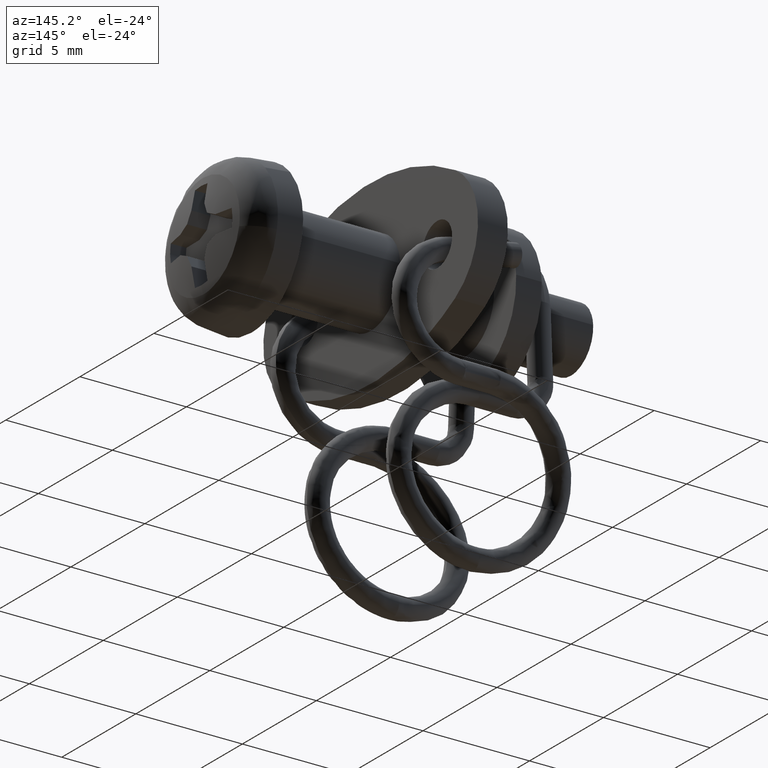
[diagram: clean part render]
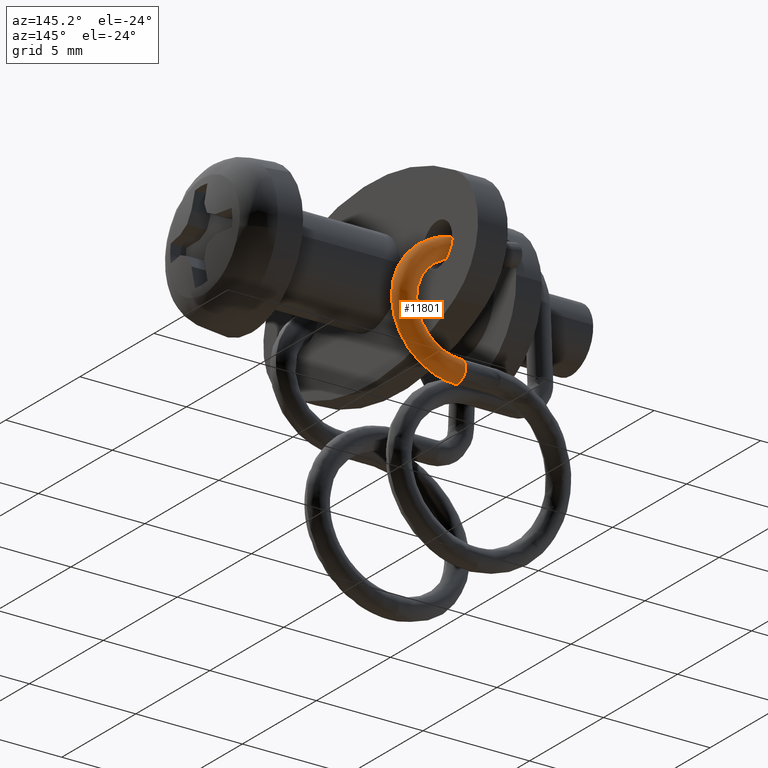
[diagram: same view with one face highlighted and labeled with its STEP entity id]
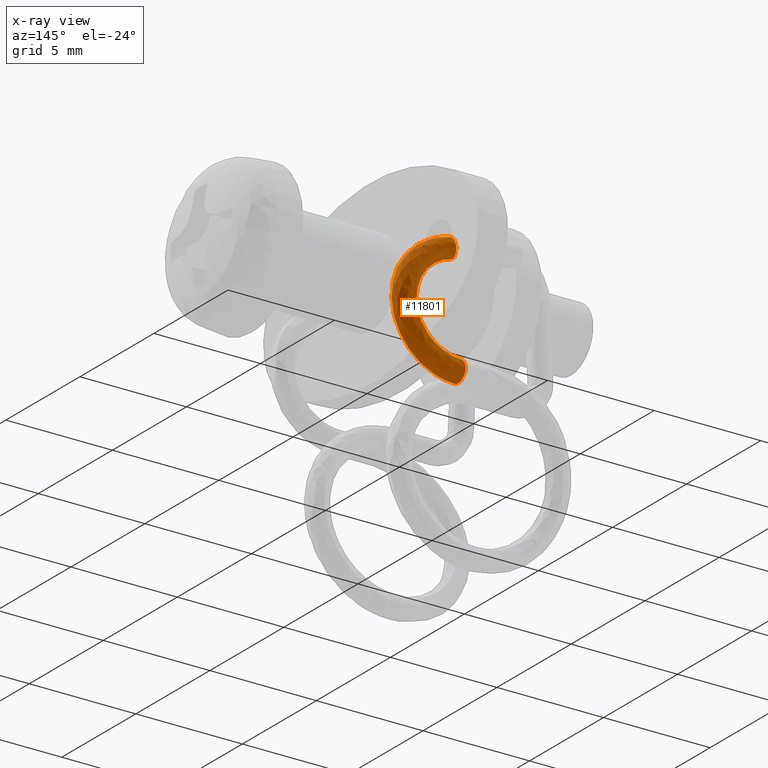
[diagram: x-ray of the same camera — body ghosted, the highlighted face saturated]
A machine part, auxiliary view. The second image highlights one B-rep face of the part: STEP entity #11801.
The next image is the same camera in x-ray: the body ghosted, the highlighted face saturated — about 0% of this face is hidden behind the body in this view.
In plain terms, the highlighted face is a freeform B-spline surface patch.
Its self-contained STEP definition (entity closure, byte-faithful):
#11352=CARTESIAN_POINT('',(-6.857397090985770,4.574609582255347,-5.057244701421936));
#11353=VERTEX_POINT('',#11352);
#11359=CARTESIAN_POINT('',(-6.857397090985770,3.914105829636933,-5.364137132687596));
#11360=VERTEX_POINT('',#11359);
#11361=CARTESIAN_POINT('',(-6.857397090985770,4.574609582255347,-5.057244701421936));
#11362=CARTESIAN_POINT('',(-6.857397090985770,4.571503730684165,-5.066909978119954));
#11363=CARTESIAN_POINT('',(-6.857397090985770,4.568055177712430,-5.076490356728621));
#11364=CARTESIAN_POINT('',(-6.857397090985770,4.466876874080229,-5.328985217815130));
#11365=CARTESIAN_POINT('',(-6.857397090985770,4.157144137744330,-5.461504723748870));
#11366=CARTESIAN_POINT('',(-6.857397090985770,3.914105829636933,-5.364137132687596));
#11367=B_SPLINE_CURVE_WITH_KNOTS('',3,(#11361,#11362,#11363,#11364,#11365,#11366),.UNSPECIFIED.,.F.,.U.,(4,2,4),(0.240248661621127,0.250000000000000,0.500000000000000),.UNSPECIFIED.);
#11368=EDGE_CURVE('',#11353,#11360,#11367,.T.);
#11432=CARTESIAN_POINT('',(-6.857397090985770,4.286002170360614,-4.435862867313218));
#11433=VERTEX_POINT('',#11432);
#11443=CARTESIAN_POINT('',(-6.857397090985770,4.286002170360614,-4.435862867313218));
#11444=CARTESIAN_POINT('',(-6.857397090985769,4.519562766854167,-4.529433270430019));
#11445=CARTESIAN_POINT('',(-6.857397090985770,4.651096080717922,-4.819105481344381));
#11446=CARTESIAN_POINT('',(-6.857397090985770,4.574609582255347,-5.057244701421936));
#11447=B_SPLINE_CURVE_WITH_KNOTS('',3,(#11443,#11444,#11445,#11446),.UNSPECIFIED.,.F.,.U.,(4,4),(0.0,0.240248661621127),.UNSPECIFIED.);
#11448=EDGE_CURVE('',#11433,#11353,#11447,.T.);
#11585=CARTESIAN_POINT('',(-6.335783071425165,3.905104269463138,0.597938229061926));
#11586=VERTEX_POINT('',#11585);
#11587=CARTESIAN_POINT('',(-6.335783071425166,3.905104269463137,0.597938229061926));
#11588=CARTESIAN_POINT('',(-5.602900445289095,3.905299498747010,0.468630671507205));
#11589=CARTESIAN_POINT('',(-4.926433057385125,3.905920072442788,0.057600915884783));
#11590=CARTESIAN_POINT('',(-4.022148053966729,3.907699330487063,-1.120869298891779));
#11591=CARTESIAN_POINT('',(-3.800239045692645,3.908848768637470,-1.882185864490553));
#11592=CARTESIAN_POINT('',(-3.929704549422163,3.911082972418768,-3.361983928466120));
#11593=CARTESIAN_POINT('',(-4.280443463391535,3.912156769253874,-4.073200376686527));
#11594=CARTESIAN_POINT('',(-5.375629594678035,3.913671916102187,-5.076739709921950));
#11595=CARTESIAN_POINT('',(-6.113194553542385,3.914105709530023,-5.364057738455996));
#11596=CARTESIAN_POINT('',(-6.857397090985770,3.914105829636933,-5.364137132687596));
#11597=B_SPLINE_CURVE_WITH_KNOTS('',3,(#11587,#11588,#11589,#11590,#11591,#11592,#11593,#11594,#11595,#11596),.UNSPECIFIED.,.F.,.U.,(4,2,2,2,4),(0.034637796732004,0.055389832968479,0.076141869204954,0.096893905441429,0.117645941677904),.UNSPECIFIED.);
#11598=EDGE_CURVE('',#11586,#11360,#11597,.T.);
#11611=CARTESIAN_POINT('',(-6.496878647618766,4.279780651931204,-0.315114794453959));
#11612=VERTEX_POINT('',#11611);
#11624=CARTESIAN_POINT('',(-6.496878647618771,4.279780651931205,-0.315114794453958));
#11625=CARTESIAN_POINT('',(-5.990338257333215,4.279915572711623,-0.404477775277564));
#11626=CARTESIAN_POINT('',(-5.522792933945855,4.280344501876490,-0.688574038970198));
#11627=CARTESIAN_POINT('',(-4.897787335114730,4.281574253819422,-1.503085481167307));
#11628=CARTESIAN_POINT('',(-4.744412594875820,4.282368699837518,-2.029277267968970));
#11629=CARTESIAN_POINT('',(-4.833894010942875,4.283912892787378,-3.052054938033365));
#11630=CARTESIAN_POINT('',(-5.076310839934835,4.284655058369700,-3.543619405597520));
#11631=CARTESIAN_POINT('',(-5.833259488038681,4.285702266991295,-4.237225469363580));
#11632=CARTESIAN_POINT('',(-6.343034469353620,4.286002101363282,-4.435817297972488));
#11633=CARTESIAN_POINT('',(-6.857397090985770,4.286002170360614,-4.435862867313218));
#11634=B_SPLINE_CURVE_WITH_KNOTS('',3,(#11624,#11625,#11626,#11627,#11628,#11629,#11630,#11631,#11632,#11633),.UNSPECIFIED.,.F.,.U.,(4,2,2,2,4),(0.034637796732004,0.055389832968479,0.076141869204954,0.096893905441429,0.117645941677904),.UNSPECIFIED.);
#11635=EDGE_CURVE('',#11612,#11433,#11634,.T.);
#11642=CARTESIAN_POINT('',(-6.558490144314505,4.265039276412708,-0.310107515975626));
#11643=CARTESIAN_POINT('',(-6.558213864164536,4.269966495808609,-0.308191328469280));
#11644=CARTESIAN_POINT('',(-6.551359725723171,4.396707570699889,-0.260800229876941));
#11645=CARTESIAN_POINT('',(-6.522126161230816,4.598787426501039,-0.059095245938268));
#11646=CARTESIAN_POINT('',(-6.481224338216968,4.607458467204674,0.220190010399010));
#11647=CARTESIAN_POINT('',(-6.445993904050252,4.508712774972074,0.461419092416553));
#11648=CARTESIAN_POINT('',(-6.417285049391600,4.306568654690630,0.655996147436825));
#11649=CARTESIAN_POINT('',(-6.416662325147400,4.019883976543893,0.662115064560463));
#11650=CARTESIAN_POINT('',(-6.424371727680103,3.895515578624770,0.609098480296686));
#11651=CARTESIAN_POINT('',(-6.424666685965013,3.890632925066235,0.607091584902330));
#11652=CARTESIAN_POINT('',(-6.538317975844289,4.265106627504083,-0.313835434149020));
#11653=CARTESIAN_POINT('',(-6.538022846889850,4.270033000837377,-0.311926226658122));
#11654=CARTESIAN_POINT('',(-6.530679776355583,4.396204178426982,-0.264538250429145));
#11655=CARTESIAN_POINT('',(-6.499544796686068,4.600479096583568,-0.063907656888545));
#11656=CARTESIAN_POINT('',(-6.455739843464653,4.606502160035899,0.216065369477580));
#11657=CARTESIAN_POINT('',(-6.418436433482294,4.508394436164187,0.455198591521748));
#11658=CARTESIAN_POINT('',(-6.387376060235080,4.307453908305067,0.652410994940225));
#11659=CARTESIAN_POINT('',(-6.386998326058358,4.019529311687196,0.656144982215482));
#11660=CARTESIAN_POINT('',(-6.395123872640783,3.895556738641013,0.603802953060589));
#11661=CARTESIAN_POINT('',(-6.395437596436558,3.890677006600882,0.601798609657521));
#11662=CARTESIAN_POINT('',(-6.264735458526793,4.264851558259878,-0.357777712233278));
#11663=CARTESIAN_POINT('',(-6.264173653340726,4.269799894527104,-0.355894601143011));
#11664=CARTESIAN_POINT('',(-6.250676029662524,4.402336316032407,-0.311063940294475));
#11665=CARTESIAN_POINT('',(-6.191071247898935,4.596815026473318,-0.109273440590857));
#11666=CARTESIAN_POINT('',(-6.111701799744841,4.601852006682758,0.159382570496355));
#11667=CARTESIAN_POINT('',(-6.042318951690330,4.504795272009056,0.393282777535021));
#11668=CARTESIAN_POINT('',(-5.987064851140326,4.307625711290755,0.583294533587062));
#11669=CARTESIAN_POINT('',(-5.982540280367184,4.022828133982622,0.597090971748537));
#11670=CARTESIAN_POINT('',(-5.998751489660490,3.895417925467775,0.539889843172019));
#11671=CARTESIAN_POINT('',(-5.999321335340444,3.890506771801797,0.537905146644225));
#11672=CARTESIAN_POINT('',(-5.759652081571153,4.265497542502464,-0.551618987693008));
#11673=CARTESIAN_POINT('',(-5.758594914430302,4.270361830683489,-0.549875564051639));
#11674=CARTESIAN_POINT('',(-5.732751186278987,4.397458032847679,-0.506899238951684));
#11675=CARTESIAN_POINT('',(-5.622655744130582,4.588866168391553,-0.325830130655468));
#11676=CARTESIAN_POINT('',(-5.475918067940698,4.610683728371112,-0.083311750246727));
#11677=CARTESIAN_POINT('',(-5.346712782099616,4.511277396620875,0.131095698622267));
#11678=CARTESIAN_POINT('',(-5.247785712568055,4.303109859912766,0.291853731651410));
#11679=CARTESIAN_POINT('',(-5.238647684385191,4.021460871188509,0.305879377558252));
#11680=CARTESIAN_POINT('',(-5.266791778567756,3.895920242031613,0.259601543745791));
#11681=CARTESIAN_POINT('',(-5.267809507356597,3.891037572383720,0.257898310769749));
#11682=CARTESIAN_POINT('',(-5.370718878821664,4.265914326338758,-0.896326049547954));
#11683=CARTESIAN_POINT('',(-5.369286054840440,4.270797581988383,-0.894911334305917));
#11684=CARTESIAN_POINT('',(-5.334393072175018,4.399635042436766,-0.860522659776469));
#11685=CARTESIAN_POINT('',(-5.185027401466352,4.592290527192349,-0.712886036566742));
#11686=CARTESIAN_POINT('',(-4.986444454628147,4.608540888678947,-0.516806355814084));
#11687=CARTESIAN_POINT('',(-4.812004982848639,4.510504424847393,-0.345032428123550));
#11688=CARTESIAN_POINT('',(-4.677240047152471,4.306417064567015,-0.211951050791878));
#11689=CARTESIAN_POINT('',(-4.664836978638919,4.023045139094545,-0.200965607299669));
#11690=CARTESIAN_POINT('',(-4.703247231904364,3.896618655627193,-0.239941418745581));
#11691=CARTESIAN_POINT('',(-4.704625706317882,3.891718095159182,-0.241337790467960));
#11692=CARTESIAN_POINT('',(-4.903285998017061,4.266874835276849,-1.505539649228399));
#11693=CARTESIAN_POINT('',(-4.901400273527477,4.271748537154879,-1.504698938435102));
#11694=CARTESIAN_POINT('',(-4.855446489065076,4.400083591415824,-1.484145582817845));
#11695=CARTESIAN_POINT('',(-4.659138000408365,4.592596097377306,-1.397640976684473));
#11696=CARTESIAN_POINT('',(-4.398214865096255,4.610403928447853,-1.283225678374369));
#11697=CARTESIAN_POINT('',(-4.168931922141183,4.512373973873216,-1.182850771735858));
#11698=CARTESIAN_POINT('',(-3.992055095787622,4.307628400393227,-1.106101173229910));
#11699=CARTESIAN_POINT('',(-3.975643292461167,4.024381780291774,-1.099983025915156));
#11700=CARTESIAN_POINT('',(-4.025928568035967,3.897950992149582,-1.122570104684289));
#11701=CARTESIAN_POINT('',(-4.027734835446915,3.893047278473523,-1.123386157924688));
#11702=CARTESIAN_POINT('',(-4.750341398690098,4.267649358666986,-2.030253146551430));
#11703=CARTESIAN_POINT('',(-4.748308131170046,4.272528281974581,-2.029918617973900));
#11704=CARTESIAN_POINT('',(-4.698770181015405,4.401107809952414,-2.021758799724185));
#11705=CARTESIAN_POINT('',(-4.487085462844660,4.593882103124744,-1.987875743149384));
#11706=CARTESIAN_POINT('',(-4.205740622775789,4.611222255883541,-1.943449416780336));
#11707=CARTESIAN_POINT('',(-3.958554029880797,4.513389886102801,-1.904808094585567));
#11708=CARTESIAN_POINT('',(-3.767764897281378,4.309081835316492,-1.875189585475498));
#11709=CARTESIAN_POINT('',(-3.750070423526007,4.025659632189393,-1.873594181466607));
#11710=CARTESIAN_POINT('',(-3.804316384953739,3.899090686507996,-1.882884607476803));
#11711=CARTESIAN_POINT('',(-3.806264150910345,3.894182952916826,-1.883219313483984));
#11712=CARTESIAN_POINT('',(-4.839570548484890,4.269302353723182,-3.050158180166640));
#11713=CARTESIAN_POINT('',(-4.837623611165322,4.274145275500551,-3.050809276832884));
#11714=CARTESIAN_POINT('',(-4.790185121083613,4.401750768057528,-3.066641500447836));
#11715=CARTESIAN_POINT('',(-4.587508549821471,4.593279920037647,-3.135470523478214));
#11716=CARTESIAN_POINT('',(-4.318166322063091,4.610812994408182,-3.227702577370028));
#11717=CARTESIAN_POINT('',(-4.081495358605744,4.513258275073539,-3.308948469178386));
#11718=CARTESIAN_POINT('',(-3.898844404863522,4.309448271382737,-3.371957550133376));
#11719=CARTESIAN_POINT('',(-3.881766613248242,4.027241778806798,-3.378232392335674));
#11720=CARTESIAN_POINT('',(-3.933599572248498,3.901378747321506,-3.360663745580352));
#11721=CARTESIAN_POINT('',(-3.935460663157203,3.896497984685133,-3.360033859395275));
#11722=CARTESIAN_POINT('',(-5.081305390856590,4.270061767121288,-3.540321357447079));
#11723=CARTESIAN_POINT('',(-5.079593007923359,4.274898704329785,-3.541452498119624));
#11724=CARTESIAN_POINT('',(-5.037872957182402,4.402364831816736,-3.569001137162451));
#11725=CARTESIAN_POINT('',(-4.859523790158955,4.593696273210655,-3.687302321764788));
#11726=CARTESIAN_POINT('',(-4.622428771944632,4.611037549740519,-3.844876748289073));
#11727=CARTESIAN_POINT('',(-4.414084385942740,4.513524730273740,-3.983511506493925));
#11728=CARTESIAN_POINT('',(-4.253269229396767,4.309932061004958,-4.090685325969559));
#11729=CARTESIAN_POINT('',(-4.238244050998593,4.028101346237387,-4.101089647650410));
#11730=CARTESIAN_POINT('',(-4.283876258155118,3.902470371423623,-4.070934385471668));
#11731=CARTESIAN_POINT('',(-4.285514635368326,3.897598849946140,-4.069852132109418));
#11732=CARTESIAN_POINT('',(-5.836125311022608,4.271106491825957,-4.231983888788006));
#11733=CARTESIAN_POINT('',(-5.835140381654322,4.275944272160261,-4.233782024093284));
#11734=CARTESIAN_POINT('',(-5.811142450478041,4.403427211389623,-4.277573920336114));
#11735=CARTESIAN_POINT('',(-5.708578501878893,4.594884680582818,-4.465318536741037));
#11736=CARTESIAN_POINT('',(-5.572256094452438,4.612417773146915,-4.715267351895507));
#11737=CARTESIAN_POINT('',(-5.452460681223535,4.515018914225520,-4.935055811117823));
#11738=CARTESIAN_POINT('',(-5.359991033850472,4.311486385286718,-5.104870201931855));
#11739=CARTESIAN_POINT('',(-5.351349883560374,4.029634042885015,-5.121076241831354));
#11740=CARTESIAN_POINT('',(-5.377592393347733,3.903984494566183,-5.073136983349624));
#11741=CARTESIAN_POINT('',(-5.378534602340539,3.899112420956854,-5.071415946832661));
#11742=CARTESIAN_POINT('',(-6.364833985559451,4.271413499267320,-4.437934938653545));
#11743=CARTESIAN_POINT('',(-6.364359074230994,4.276252110389771,-4.439933603699279));
#11744=CARTESIAN_POINT('',(-6.352789068879659,4.403757526686374,-4.488628212151647));
#11745=CARTESIAN_POINT('',(-6.303321683791891,4.595264221132513,-4.697121420260576));
#11746=CARTESIAN_POINT('',(-6.237559880495508,4.612820129592291,-4.974510877968408));
#11747=CARTESIAN_POINT('',(-6.179778673872920,4.515464036559789,-5.218431898151873));
#11748=CARTESIAN_POINT('',(-6.135188406395344,4.311909783684449,-5.406896280652549));
#11749=CARTESIAN_POINT('',(-6.131027976308563,4.030058567678052,-5.424838030119036));
#11750=CARTESIAN_POINT('',(-6.143683843557770,3.904431881846109,-5.371547810538805));
#11751=CARTESIAN_POINT('',(-6.144138280738695,3.899560349067981,-5.369635585638642));
#11752=CARTESIAN_POINT('',(-6.898433302924524,4.271455666717584,-4.429775128212800));
#11753=CARTESIAN_POINT('',(-6.898472865244163,4.276295687461135,-4.431764444786135));
#11754=CARTESIAN_POINT('',(-6.899436794586649,4.403836819067647,-4.480206634482760));
#11755=CARTESIAN_POINT('',(-6.903557784416892,4.595397546020238,-4.687862676972852));
#11756=CARTESIAN_POINT('',(-6.909035961788965,4.612922576449130,-4.964254052870748));
#11757=CARTESIAN_POINT('',(-6.913849730683250,4.515453302860489,-5.207207550914342));
#11758=CARTESIAN_POINT('',(-6.917565098914204,4.311869114331207,-5.394820133038323));
#11759=CARTESIAN_POINT('',(-6.917912200852579,4.030112067407720,-5.412697075393839));
#11760=CARTESIAN_POINT('',(-6.916857864526539,3.904504069840867,-5.359740902212310));
#11761=CARTESIAN_POINT('',(-6.916820007492378,3.899633828208234,-5.357839107859772));
#11762=CARTESIAN_POINT('',(-6.918946463816075,4.271457677341094,-4.429925319198398));
#11763=CARTESIAN_POINT('',(-6.919005802759661,4.276297614011165,-4.431914878542809));
#11764=CARTESIAN_POINT('',(-6.920451584355232,4.403836870104939,-4.480363641093956));
#11765=CARTESIAN_POINT('',(-6.926632508419061,4.595395146686827,-4.688036189728735));
#11766=CARTESIAN_POINT('',(-6.934848946660365,4.612916438249118,-4.964438115587853));
#11767=CARTESIAN_POINT('',(-6.942068993330954,4.515466517598197,-5.207411194304681));
#11768=CARTESIAN_POINT('',(-6.947641743785491,4.311879773270447,-5.395048561356615));
#11769=CARTESIAN_POINT('',(-6.948162519097655,4.030116882897047,-5.412927388705242));
#11770=CARTESIAN_POINT('',(-6.946581172719004,3.904508119895265,-5.359960137671606));
#11771=CARTESIAN_POINT('',(-6.946524394299487,3.899637798607069,-5.358057998027009));
#11772=B_SPLINE_SURFACE_WITH_KNOTS('',3,3,((#11642,#11652,#11662,#11672,#11682,#11692,#11702,#11712,#11722,#11732,#11742,#11752,#11762),(#11643,#11653,#11663,#11673,#11683,#11693,#11703,#11713,#11723,#11733,#11743,#11753,#11763),(#11644,#11654,#11664,#11674,#11684,#11694,#11704,#11714,#11724,#11734,#11744,#11754,#11764),(#11645,#11655,#11665,#11675,#11685,#11695,#11705,#11715,#11725,#11735,#11745,#11755,#11765),(#11646,#11656,#11666,#11676,#11686,#11696,#11706,#11716,#11726,#11736,#11746,#11756,#11766),(#11647,#11657,#11667,#11677,#11687,#11697,#11707,#11717,#11727,#11737,#11747,#11757,#11767),(#11648,#11658,#11668,#11678,#11688,#11698,#11708,#11718,#11728,#11738,#11748,#11758,#11768),(#11649,#11659,#11669,#11679,#11689,#11699,#11709,#11719,#11729,#11739,#11749,#11759,#11769),(#11650,#11660,#11670,#11680,#11690,#11700,#11710,#11720,#11730,#11740,#11750,#11760,#11770),(#11651,#11661,#11671,#11681,#11691,#11701,#11711,#11721,#11731,#11741,#11751,#11761,#11771)),.UNSPECIFIED.,.F.,.F.,.U.,(4,1,1,2,1,1,4),(4,1,1,2,2,2,1,4),(0.0,0.015715346793354,0.408599016447969,0.801482686102585,1.194366355757200,1.587250025411815,1.602965372207525),(0.0,0.090096636051850,1.216295056303962,2.342493476556075,4.594890317060306,6.847287157564534,9.099683998068766,9.189779879237767),.UNSPECIFIED.);
#11773=ORIENTED_EDGE('',*,*,#11598,.T.);
#11774=ORIENTED_EDGE('',*,*,#11368,.F.);
#11775=ORIENTED_EDGE('',*,*,#11448,.F.);
#11776=ORIENTED_EDGE('',*,*,#11635,.F.);
#11777=CARTESIAN_POINT('',(-6.388898472863560,4.566573873704808,0.297704408979733));
#11778=VERTEX_POINT('',#11777);
#11779=CARTESIAN_POINT('',(-6.496878647618766,4.279780651931204,-0.315114794453959));
#11780=CARTESIAN_POINT('',(-6.488393258732928,4.401147608677337,-0.266808506790735));
#11781=CARTESIAN_POINT('',(-6.471279179781919,4.501578186457512,-0.169598079850347));
#11782=CARTESIAN_POINT('',(-6.431083785473538,4.599881256371150,0.058509821915297));
#11783=CARTESIAN_POINT('',(-6.408789368970196,4.604589636830230,0.184954890962916));
#11784=CARTESIAN_POINT('',(-6.388898472863560,4.566573873704808,0.297704408979733));
#11785=B_SPLINE_CURVE_WITH_KNOTS('',3,(#11779,#11780,#11781,#11782,#11783,#11784),.UNSPECIFIED.,.F.,.U.,(4,2,4),(0.0,0.125000000000000,0.240274424988285),.UNSPECIFIED.);
#11786=EDGE_CURVE('',#11612,#11778,#11785,.T.);
#11787=ORIENTED_EDGE('',*,*,#11786,.T.);
#11788=CARTESIAN_POINT('',(-6.388898472863560,4.566573873704808,0.297704408979733));
#11789=CARTESIAN_POINT('',(-6.387220321709680,4.563366149340186,0.307216837187613));
#11790=CARTESIAN_POINT('',(-6.385559279082115,4.559854309757353,0.316631778935421));
#11791=CARTESIAN_POINT('',(-6.362831373333173,4.506990751435316,0.445448366169515));
#11792=CARTESIAN_POINT('',(-6.345367114958527,4.408283183465329,0.544344100557769));
#11793=CARTESIAN_POINT('',(-6.327545406500731,4.167281248174025,0.645052199282338));
#11794=CARTESIAN_POINT('',(-6.327297699516961,4.026470930454277,0.646244419993638));
#11795=CARTESIAN_POINT('',(-6.335783071425165,3.905104269463138,0.597938229061926));
#11796=B_SPLINE_CURVE_WITH_KNOTS('',3,(#11788,#11789,#11790,#11791,#11792,#11793,#11794,#11795),.UNSPECIFIED.,.F.,.U.,(4,2,2,4),(0.240274424988285,0.250000000000000,0.375000000000000,0.500000000000001),.UNSPECIFIED.);
#11797=EDGE_CURVE('',#11778,#11586,#11796,.T.);
#11798=ORIENTED_EDGE('',*,*,#11797,.T.);
#11799=EDGE_LOOP('',(#11773,#11774,#11775,#11776,#11787,#11798));
#11800=FACE_OUTER_BOUND('',#11799,.T.);
#11801=ADVANCED_FACE('',(#11800),#11772,.T.);